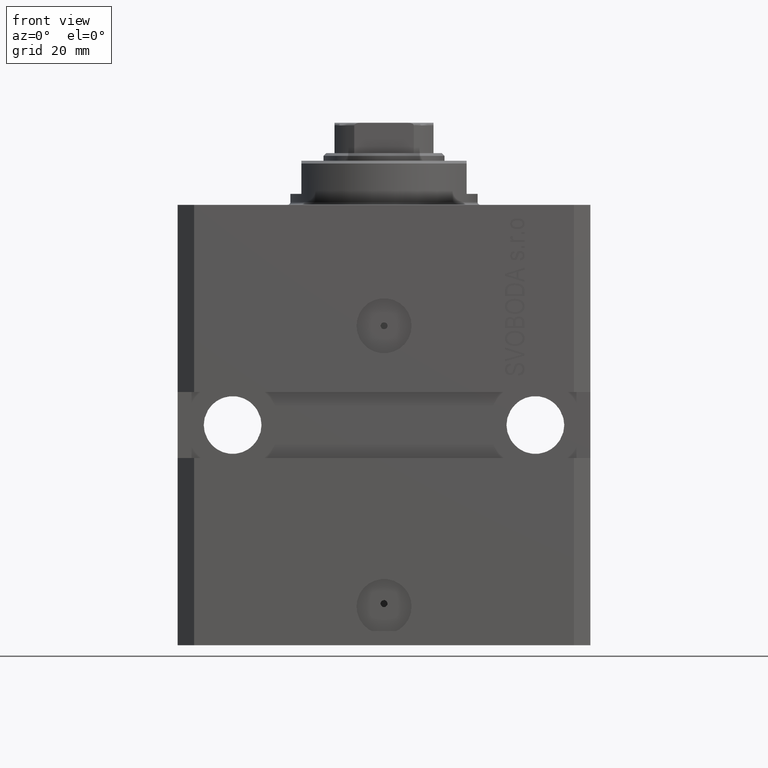
[diagram: clean part render]
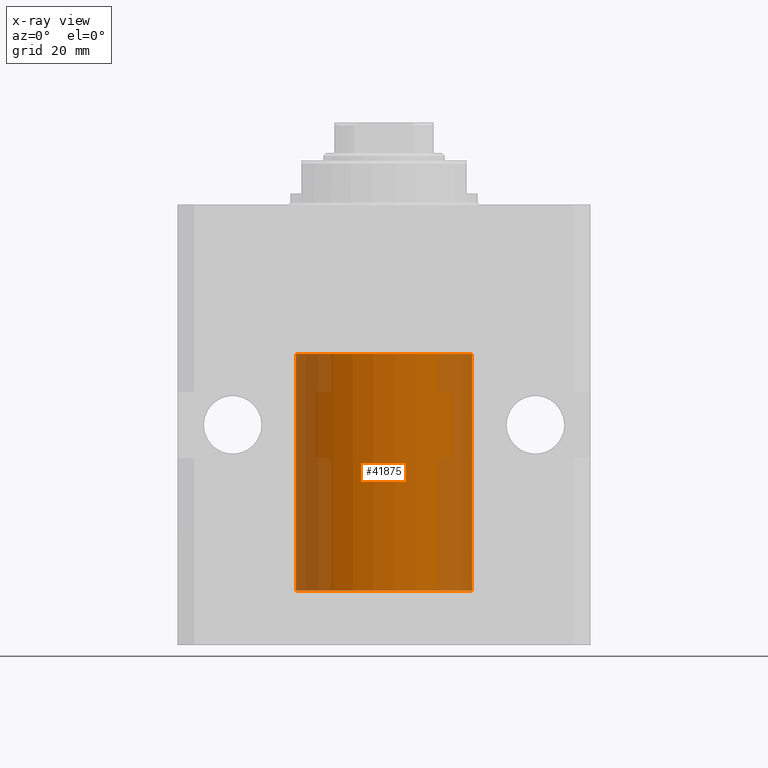
[diagram: x-ray — body ghosted, one internal face saturated and labeled with its STEP entity id]
A machine part, front view, then the same camera in x-ray: the body is ghosted and one INTERNAL B-rep face — a face not visible from any outside direction — is saturated and labeled: STEP entity #41875.
In plain terms, the highlighted cylindrical surface (partial cylindrical patch) has radius 16 mm, axis along (0, 0, 1).
Its self-contained STEP definition (entity closure, byte-faithful):
#1260 = DIRECTION ( 'NONE',  ( 0.000000000000000000, 0.000000000000000000, 1.000000000000000000 ) ) ;
#1389 = DIRECTION ( 'NONE',  ( -0.000000000000000000, -0.000000000000000000, 1.000000000000000000 ) ) ;
#1452 = ORIENTED_EDGE ( 'NONE', *, *, #16306, .F. ) ;
#2020 = LINE ( 'NONE', #28747, #43808 ) ;
#3526 = CARTESIAN_POINT ( 'NONE',  ( 15.99708487730508821, -0.3264777333248483626, -67.44266166809920549 ) ) ;
#4927 = DIRECTION ( 'NONE',  ( -0.000000000000000000, -0.000000000000000000, 1.000000000000000000 ) ) ;
#6423 = CARTESIAN_POINT ( 'NONE',  ( 16.00000000000000000, -0.1650734421240358518, -68.62500000000004263 ) ) ;
#6441 = CARTESIAN_POINT ( 'NONE',  ( 15.98778830858101685, -0.6250000000001221245, -68.00000000000000000 ) ) ;
#7121 = EDGE_CURVE ( 'NONE', #37195, #40944, #30674, .T. ) ;
#7431 = DIRECTION ( 'NONE',  ( 1.000000000000000000, 0.000000000000000000, 0.000000000000000000 ) ) ;
#7894 = VERTEX_POINT ( 'NONE', #22968 ) ;
#8214 = EDGE_CURVE ( 'NONE', #12757, #11547, #30966, .T. ) ;
#8294 = DIRECTION ( 'NONE',  ( 1.000000000000000000, 0.000000000000000000, 0.000000000000000000 ) ) ;
#10323 = VERTEX_POINT ( 'NONE', #38575 ) ;
#10981 = AXIS2_PLACEMENT_3D ( 'NONE', #38181, #30827, #7431 ) ;
#11542 = EDGE_CURVE ( 'NONE', #11547, #10323, #24953, .T. ) ;
#11547 = VERTEX_POINT ( 'NONE', #43879 ) ;
#11715 = CARTESIAN_POINT ( 'NONE',  ( 16.00000000000000000, 0.000000000000000000, -70.09999999999999432 ) ) ;
#12670 = CARTESIAN_POINT ( 'NONE',  ( 16.00000000000000000, -1.835653844722709729E-15, -68.62500000000000000 ) ) ;
#12757 = VERTEX_POINT ( 'NONE', #20319 ) ;
#13562 = CARTESIAN_POINT ( 'NONE',  ( 15.98778830858102040, -0.6250000000001221245, -67.83501479319284044 ) ) ;
#14370 = ORIENTED_EDGE ( 'NONE', *, *, #18268, .F. ) ;
#14568 = VERTEX_POINT ( 'NONE', #29003 ) ;
#16306 = EDGE_CURVE ( 'NONE', #40944, #10323, #20594, .T. ) ;
#17266 = CARTESIAN_POINT ( 'NONE',  ( 16.00000000000000000, 0.000000000000000000, -70.09999999999999432 ) ) ;
#18268 = EDGE_CURVE ( 'NONE', #12757, #7894, #32436, .T. ) ;
#18546 = CARTESIAN_POINT ( 'NONE',  ( 0.000000000000000000, 0.000000000000000000, -70.09999999999999432 ) ) ;
#20319 = CARTESIAN_POINT ( 'NONE',  ( 16.00000000000013145, 3.665532692826917502E-13, -67.37499999999657518 ) ) ;
#20594 = LINE ( 'NONE', #17266, #38661 ) ;
#20816 = DIRECTION ( 'NONE',  ( -0.000000000000000000, -0.000000000000000000, 1.000000000000000000 ) ) ;
#20894 = VECTOR ( 'NONE', #21961, 1000.000000000000000 ) ;
#21961 = DIRECTION ( 'NONE',  ( -0.000000000000000000, -0.000000000000000000, 1.000000000000000000 ) ) ;
#22968 = CARTESIAN_POINT ( 'NONE',  ( 16.00000000000000000, 0.000000000000000000, -27.10000000000000142 ) ) ;
#24953 = B_SPLINE_CURVE_WITH_KNOTS ( 'NONE', 3,
 ( #36958, #29820, #30477, #34048, #6423, #12670 ),
 .UNSPECIFIED., .F., .F.,
 ( 4, 2, 4 ),
 ( 0.002931623410139858662, 0.003419811200989293816, 0.003907998991838729404 ),
 .UNSPECIFIED. ) ;
#25009 = FACE_OUTER_BOUND ( 'NONE', #27303, .T. ) ;
#25228 = CYLINDRICAL_SURFACE ( 'NONE', #32516, 16.00000000000000000 ) ;
#25761 = CARTESIAN_POINT ( 'NONE',  ( 0.000000000000000000, 0.000000000000000000, -70.09999999999999432 ) ) ;
#26282 = ORIENTED_EDGE ( 'NONE', *, *, #31452, .T. ) ;
#27303 = EDGE_LOOP ( 'NONE', ( #38795, #27317, #26282, #14370, #43190, #28893, #1452 ) ) ;
#27317 = ORIENTED_EDGE ( 'NONE', *, *, #33882, .T. ) ;
#28747 = CARTESIAN_POINT ( 'NONE',  ( -16.00000000000000000, 1.959434878635765131E-15, -70.09999999999999432 ) ) ;
#28893 = ORIENTED_EDGE ( 'NONE', *, *, #11542, .T. ) ;
#29003 = CARTESIAN_POINT ( 'NONE',  ( -16.00000000000000000, 1.959434878635765131E-15, -27.10000000000000142 ) ) ;
#29107 = DIRECTION ( 'NONE',  ( 1.000000000000000000, 0.000000000000000000, 0.000000000000000000 ) ) ;
#29820 = CARTESIAN_POINT ( 'NONE',  ( 15.98778830858102040, -0.6250000000001221245, -68.16481193282331219 ) ) ;
#30056 = CARTESIAN_POINT ( 'NONE',  ( 16.00000000000000355, -0.1632201307031984627, -67.37499999999981526 ) ) ;
#30277 = CARTESIAN_POINT ( 'NONE',  ( 16.00000000000013145, 3.665532692826917502E-13, -67.37499999999657518 ) ) ;
#30477 = CARTESIAN_POINT ( 'NONE',  ( 15.99070553365076996, -0.5573460204199470747, -68.32646897863006075 ) ) ;
#30674 = CIRCLE ( 'NONE', #40653, 16.00000000000000000 ) ;
#30827 = DIRECTION ( 'NONE',  ( 0.000000000000000000, 0.000000000000000000, 1.000000000000000000 ) ) ;
#30966 = B_SPLINE_CURVE_WITH_KNOTS ( 'NONE', 3,
 ( #30277, #30056, #3526, #36976, #13562, #6441 ),
 .UNSPECIFIED., .F., .F.,
 ( 4, 2, 4 ),
 ( 0.001954221322144537518, 0.002442922366142198307, 0.002931623410139858662 ),
 .UNSPECIFIED. ) ;
#31452 = EDGE_CURVE ( 'NONE', #14568, #7894, #39460, .T. ) ;
#32436 = LINE ( 'NONE', #11715, #20894 ) ;
#32516 = AXIS2_PLACEMENT_3D ( 'NONE', #18546, #1389, #8294 ) ;
#33882 = EDGE_CURVE ( 'NONE', #37195, #14568, #2020, .T. ) ;
#34048 = CARTESIAN_POINT ( 'NONE',  ( 15.99707785788560521, -0.3267997233067475582, -68.55715215276643448 ) ) ;
#36528 = CARTESIAN_POINT ( 'NONE',  ( 16.00000000000000000, 0.000000000000000000, -70.09999999999999432 ) ) ;
#36958 = CARTESIAN_POINT ( 'NONE',  ( 15.98778830858101685, -0.6250000000001221245, -68.00000000000000000 ) ) ;
#36976 = CARTESIAN_POINT ( 'NONE',  ( 15.99071289786271954, -0.5571474671814620194, -67.67319665488822977 ) ) ;
#37195 = VERTEX_POINT ( 'NONE', #38748 ) ;
#38181 = CARTESIAN_POINT ( 'NONE',  ( 0.000000000000000000, 0.000000000000000000, -27.10000000000000142 ) ) ;
#38575 = CARTESIAN_POINT ( 'NONE',  ( 16.00000000000000000, -1.835653844722709729E-15, -68.62500000000000000 ) ) ;
#38661 = VECTOR ( 'NONE', #20816, 1000.000000000000000 ) ;
#38748 = CARTESIAN_POINT ( 'NONE',  ( -16.00000000000000000, 1.959434878635765131E-15, -70.09999999999999432 ) ) ;
#38795 = ORIENTED_EDGE ( 'NONE', *, *, #7121, .F. ) ;
#39460 = CIRCLE ( 'NONE', #10981, 16.00000000000000000 ) ;
#40653 = AXIS2_PLACEMENT_3D ( 'NONE', #25761, #1260, #29107 ) ;
#40944 = VERTEX_POINT ( 'NONE', #36528 ) ;
#41875 = ADVANCED_FACE ( 'NONE', ( #25009 ), #25228, .F. ) ;
#43190 = ORIENTED_EDGE ( 'NONE', *, *, #8214, .T. ) ;
#43808 = VECTOR ( 'NONE', #4927, 1000.000000000000000 ) ;
#43879 = CARTESIAN_POINT ( 'NONE',  ( 15.98778830858101685, -0.6250000000001221245, -68.00000000000000000 ) ) ;